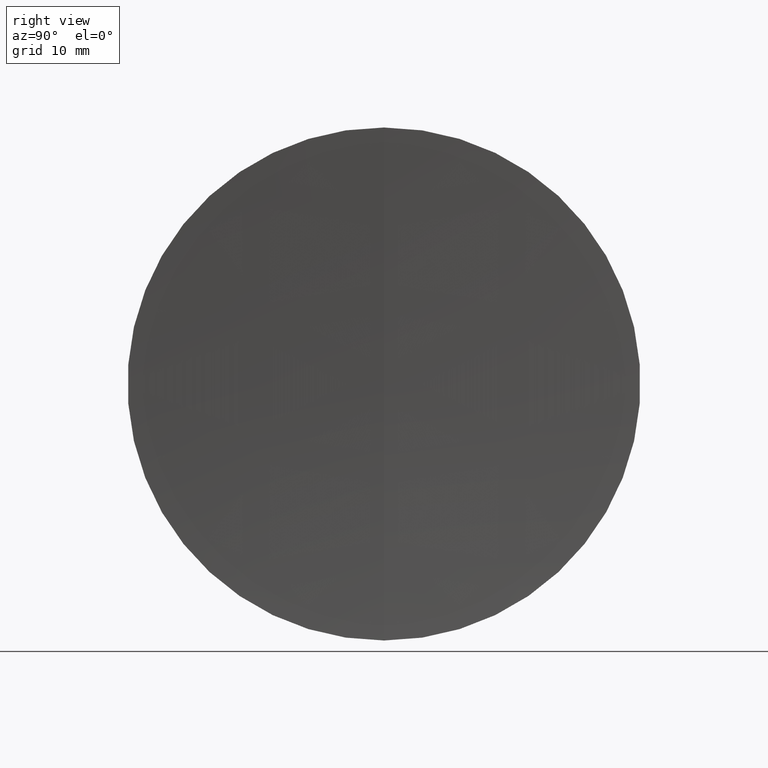
[diagram: clean part render]
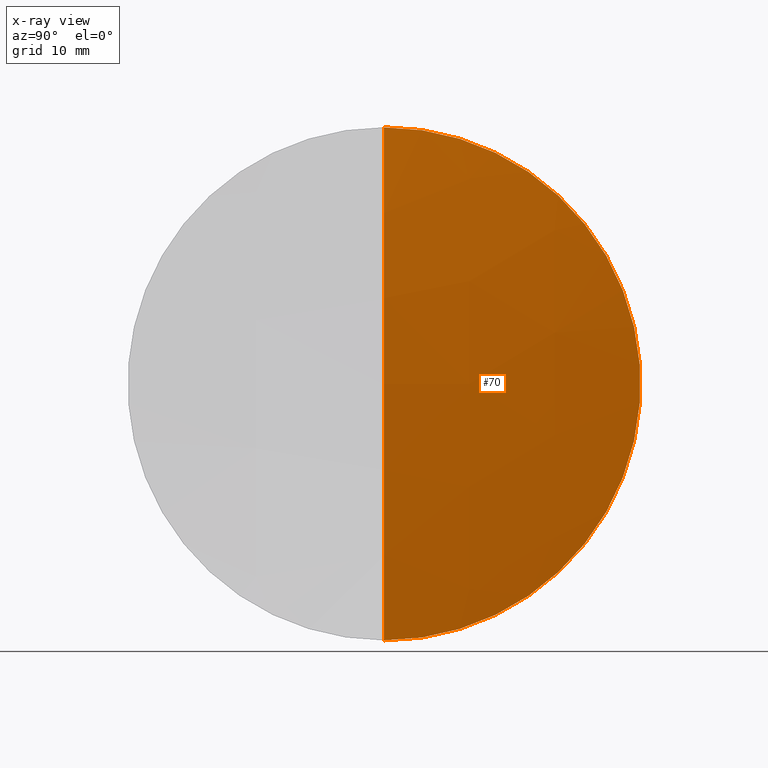
[diagram: x-ray — body ghosted, one internal face saturated and labeled with its STEP entity id]
A machine part, right view, then the same camera in x-ray: the body is ghosted and one INTERNAL B-rep face — a face not visible from any outside direction — is saturated and labeled: STEP entity #70.
In plain terms, the highlighted spherical surface has radius 234.27 mm.
Its self-contained STEP definition (entity closure, byte-faithful):
#2 = CIRCLE ( 'NONE', #26, 234.2700000000004600 ) ;
#6 = AXIS2_PLACEMENT_3D ( 'NONE', #253, #281, #106 ) ;
#7 = CIRCLE ( 'NONE', #66, 234.2700000000004600 ) ;
#14 = ORIENTED_EDGE ( 'NONE', *, *, #277, .F. ) ;
#26 = AXIS2_PLACEMENT_3D ( 'NONE', #343, #75, #228 ) ;
#63 = CIRCLE ( 'NONE', #6, 25.40000000000002300 ) ;
#66 = AXIS2_PLACEMENT_3D ( 'NONE', #110, #306, #154 ) ;
#67 = ORIENTED_EDGE ( 'NONE', *, *, #312, .F. ) ;
#70 = ADVANCED_FACE ( 'NONE', ( #153 ), #143, .T. ) ;
#72 = CARTESIAN_POINT ( 'NONE',  ( 320.5779002687385700, 0.0000000000000000000, 4.350740518163165400E-014 ) ) ;
#75 = DIRECTION ( 'NONE',  ( -0.0000000000000000000, 1.000000000000000000, 1.224646799147353200E-016 ) ) ;
#94 = VERTEX_POINT ( 'NONE', #235 ) ;
#106 = DIRECTION ( 'NONE',  ( 0.0000000000000000000, 0.0000000000000000000, 1.000000000000000000 ) ) ;
#110 = CARTESIAN_POINT ( 'NONE',  ( 86.30790026873805200, 0.0000000000000000000, 2.916250489981909800E-014 ) ) ;
#120 = CARTESIAN_POINT ( 'NONE',  ( 319.1968714545806200, 0.0000000000000000000, 25.40000000000002300 ) ) ;
#143 = SPHERICAL_SURFACE ( 'NONE', #261, 234.2700000000004600 ) ;
#153 = FACE_OUTER_BOUND ( 'NONE', #259, .T. ) ;
#154 = DIRECTION ( 'NONE',  ( 0.0000000000000000000, 0.0000000000000000000, -1.000000000000000000 ) ) ;
#167 = DIRECTION ( 'NONE',  ( 0.0000000000000000000, 0.0000000000000000000, 1.000000000000000000 ) ) ;
#179 = CARTESIAN_POINT ( 'NONE',  ( 86.30790026873805200, 0.0000000000000000000, 2.916250489981909800E-014 ) ) ;
#223 = ORIENTED_EDGE ( 'NONE', *, *, #292, .T. ) ;
#228 = DIRECTION ( 'NONE',  ( 0.0000000000000000000, -1.224646799147353200E-016, 1.000000000000000000 ) ) ;
#235 = CARTESIAN_POINT ( 'NONE',  ( 319.1968714545806200, 3.110602869834280000E-015, -25.40000000000002300 ) ) ;
#253 = CARTESIAN_POINT ( 'NONE',  ( 319.1968714545806200, 0.0000000000000000000, 0.0000000000000000000 ) ) ;
#259 = EDGE_LOOP ( 'NONE', ( #14, #223, #67 ) ) ;
#261 = AXIS2_PLACEMENT_3D ( 'NONE', #179, #345, #167 ) ;
#269 = VERTEX_POINT ( 'NONE', #72 ) ;
#277 = EDGE_CURVE ( 'NONE', #269, #318, #7, .T. ) ;
#281 = DIRECTION ( 'NONE',  ( -1.000000000000000000, -0.0000000000000000000, -0.0000000000000000000 ) ) ;
#292 = EDGE_CURVE ( 'NONE', #269, #94, #2, .T. ) ;
#306 = DIRECTION ( 'NONE',  ( 0.0000000000000000000, -1.000000000000000000, 0.0000000000000000000 ) ) ;
#312 = EDGE_CURVE ( 'NONE', #318, #94, #63, .T. ) ;
#318 = VERTEX_POINT ( 'NONE', #120 ) ;
#343 = CARTESIAN_POINT ( 'NONE',  ( 86.30790026873805200, 0.0000000000000000000, 2.916250489981909800E-014 ) ) ;
#345 = DIRECTION ( 'NONE',  ( 0.0000000000000000000, 1.000000000000000000, 0.0000000000000000000 ) ) ;